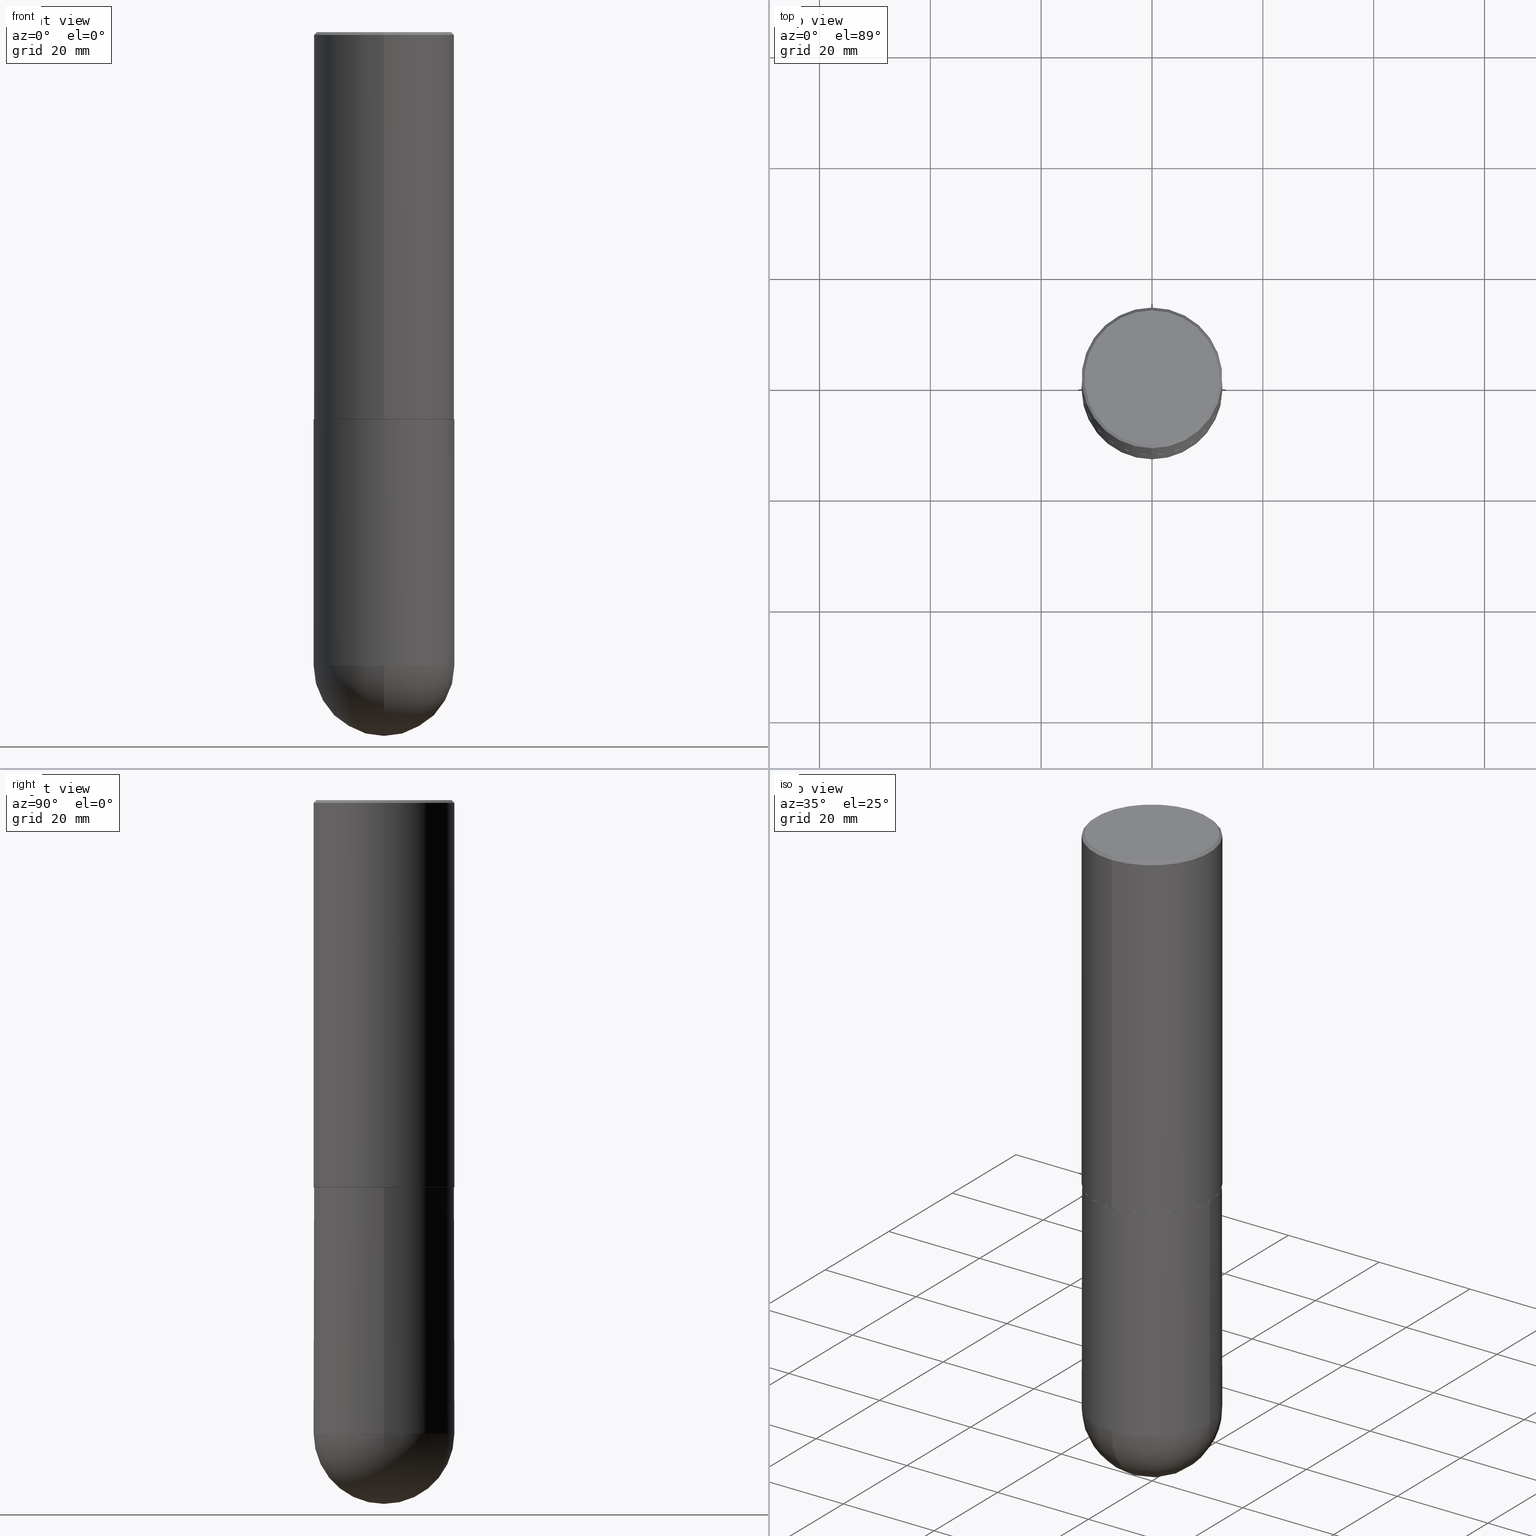
[diagram: canonical four-view strip — front | top / right | iso, engineering-drawing reading convention]
A machine part, canonical four-view strip (front | top / right | iso — engineering-drawing reading convention). The complete STEP part file that produces these views, byte-faithful:
ISO-10303-21;
HEADER;
FILE_DESCRIPTION (( 'STEP AP203' ),
    '1' );
FILE_NAME ('31849.STEP',
    '2024-02-21T17:04:59',
    ( '' ),
    ( '' ),
    'SwSTEP 2.0',
    'SolidWorks 2023',
    '' );
FILE_SCHEMA (( 'CONFIG_CONTROL_DESIGN' ));
ENDSEC;

DATA;
#1 = DIRECTION ( 'NONE',  ( 6.982962677686266711E-15, 1.000000000000000000, 0.000000000000000000 ) ) ;
#2 = ORIENTED_EDGE ( 'NONE', *, *, #10, .F. ) ;
#3 = ORIENTED_EDGE ( 'NONE', *, *, #215, .F. ) ;
#4 = PERSON_AND_ORGANIZATION ( #166, #76 ) ;
#5 = AXIS2_PLACEMENT_3D ( 'NONE', #356, #359, #176 ) ;
#6 = AXIS2_PLACEMENT_3D ( 'NONE', #235, #394, #399 ) ;
#7 = VERTEX_POINT ( 'NONE', #305 ) ;
#8 = COORDINATED_UNIVERSAL_TIME_OFFSET ( 5, 0, .BEHIND. ) ;
#9 = LINE ( 'NONE', #256, #282 ) ;
#10 = EDGE_CURVE ( 'NONE', #255, #55, #181, .T. ) ;
#11 = PERSON_AND_ORGANIZATION_ROLE ( 'design_owner' ) ;
#12 = VERTEX_POINT ( 'NONE', #391 ) ;
#13 = AXIS2_PLACEMENT_3D ( 'NONE', #110, #72, #365 ) ;
#14 = ADVANCED_FACE ( 'NONE', ( #49 ), #28, .T. ) ;
#15 = FACE_OUTER_BOUND ( 'NONE', #203, .T. ) ;
#16 = LINE ( 'NONE', #51, #408 ) ;
#17 = DIRECTION ( 'NONE',  ( 6.982962677686265922E-15, 1.000000000000000000, -3.492399597108675869E-15 ) ) ;
#18 = AXIS2_PLACEMENT_3D ( 'NONE', #169, #200, #358 ) ;
#19 = DIRECTION ( 'NONE',  ( -2.444827589865469410E-29, 3.492399597108675474E-15, 1.000000000000000000 ) ) ;
#20 = FACE_OUTER_BOUND ( 'NONE', #382, .T. ) ;
#21 = MANIFOLD_SOLID_BREP ( 'Body-Move/Copy2[2]', #95 ) ;
#22 = APPROVAL ( #321, 'UNSPECIFIED' ) ;
#23 = DIRECTION ( 'NONE',  ( -6.982962677686265922E-15, -1.000000000000000000, 3.491643216902136802E-15 ) ) ;
#24 = CONICAL_SURFACE ( 'NONE', #75, 0.4999999999999999445, 0.7853981633974469467 ) ;
#25 = LOCAL_TIME ( 12, 4, 59.00000000000000000, #343 ) ;
#26 = DATE_AND_TIME ( #410, #141 ) ;
#27 = ORIENTED_EDGE ( 'NONE', *, *, #162, .T. ) ;
#28 = CONICAL_SURFACE ( 'NONE', #149, 0.4989999999999999991, 0.7853981633974482790 ) ;
#29 = ORIENTED_EDGE ( 'NONE', *, *, #137, .F. ) ;
#30 = PERSON_AND_ORGANIZATION ( #166, #76 ) ;
#31 = DIRECTION ( 'NONE',  ( -1.000000000000000000, 6.982962677686265922E-15, -4.883557194083113462E-29 ) ) ;
#32 = ORIENTED_EDGE ( 'NONE', *, *, #64, .T. ) ;
#33 = PERSON_AND_ORGANIZATION ( #166, #76 ) ;
#34 = CARTESIAN_POINT ( 'NONE',  ( 1.067348984991922956E-28, -1.618584839293420562E-14, -4.500000000000000000 ) ) ;
#35 = ORIENTED_EDGE ( 'NONE', *, *, #227, .T. ) ;
#36 = CARTESIAN_POINT ( 'NONE',  ( 0.5000000000000000000, -3.491481338843133355E-15, 2.438088387897967896E-29 ) ) ;
#37 = AXIS2_PLACEMENT_3D ( 'NONE', #188, #396, #82 ) ;
#38 = APPROVAL_PERSON_ORGANIZATION ( #33, #113, #70 ) ;
#39 = ORIENTED_EDGE ( 'NONE', *, *, #374, .F. ) ;
#40 = DIRECTION ( 'NONE',  ( 5.024295867788060812E-15, 0.7071067811865499042, 0.7071067811865450192 ) ) ;
#41 = DIRECTION ( 'NONE',  ( 1.000000000000000000, -6.982962677686265922E-15, 4.883557194083112340E-29 ) ) ;
#42 = ORIENTED_EDGE ( 'NONE', *, *, #153, .T. ) ;
#43 = SPHERICAL_SURFACE ( 'NONE', #108, 0.5000000000000002220 ) ;
#44 = LOCAL_TIME ( 12, 4, 59.00000000000000000, #289 ) ;
#45 = CARTESIAN_POINT ( 'NONE',  ( -8.568113143938439245E-45, 1.223942130558119662E-30, 3.504587881556881194E-16 ) ) ;
#46 = CARTESIAN_POINT ( 'NONE',  ( 3.552713678800535639E-15, 0.4999999999999907296, -2.749000000000001886 ) ) ;
#47 = DIRECTION ( 'NONE',  ( -2.444827589865469410E-29, 3.492399597108675869E-15, 1.000000000000000000 ) ) ;
#48 = DIRECTION ( 'NONE',  ( -6.982962677686265922E-15, -1.000000000000000000, 3.278217592397113496E-15 ) ) ;
#49 = FACE_OUTER_BOUND ( 'NONE', #65, .T. ) ;
#50 = CIRCLE ( 'NONE', #401, 0.4989999999999999991 ) ;
#51 = CARTESIAN_POINT ( 'NONE',  ( -3.430248998885764598E-15, -0.5000000000000000000, -0.01999999999999835937 ) ) ;
#52 = DIRECTION ( 'NONE',  ( 6.982962677686265922E-15, 1.000000000000000000, -3.491643216902136802E-15 ) ) ;
#53 = AXIS2_PLACEMENT_3D ( 'NONE', #271, #333, #187 ) ;
#54 = DESIGN_CONTEXT ( 'detailed design', #403, 'design' ) ;
#55 = VERTEX_POINT ( 'NONE', #360 ) ;
#56 = ORIENTED_EDGE ( 'NONE', *, *, #153, .F. ) ;
#57 = COORDINATED_UNIVERSAL_TIME_OFFSET ( 5, 0, .BEHIND. ) ;
#58 = ADVANCED_FACE ( 'NONE', ( #85 ), #214, .F. ) ;
#59 = ADVANCED_FACE ( 'NONE', ( #310 ), #213, .F. ) ;
#60 = VERTEX_POINT ( 'NONE', #366 ) ;
#61 = AXIS2_PLACEMENT_3D ( 'NONE', #290, #329, #262 ) ;
#62 = EDGE_LOOP ( 'NONE', ( #222, #39 ) ) ;
#63 = DIRECTION ( 'NONE',  ( -2.444827589865469410E-29, 3.492399597108675869E-15, 1.000000000000000000 ) ) ;
#64 = EDGE_CURVE ( 'NONE', #88, #126, #345, .T. ) ;
#65 = EDGE_LOOP ( 'NONE', ( #326, #406, #130, #324 ) ) ;
#66 = DIRECTION ( 'NONE',  ( 1.000000000000000000, -6.982962677686262766E-15, 0.000000000000000000 ) ) ;
#67 = CC_DESIGN_PERSON_AND_ORGANIZATION_ASSIGNMENT ( #124, #160, ( #274 ) ) ;
#68 = VERTEX_POINT ( 'NONE', #74 ) ;
#69 = LOCAL_TIME ( 12, 4, 59.00000000000000000, #57 ) ;
#70 = APPROVAL_ROLE ( '' ) ;
#71 = LINE ( 'NONE', #225, #185 ) ;
#72 = DIRECTION ( 'NONE',  ( -2.445468806185136597E-29, 3.491481338843145583E-15, 1.000000000000000000 ) ) ;
#73 = CYLINDRICAL_SURFACE ( 'NONE', #13, 0.5000000000000000000 ) ;
#74 = CARTESIAN_POINT ( 'NONE',  ( 1.191760341024128201E-28, -1.790097289237709482E-14, -5.000000000000000000 ) ) ;
#75 = AXIS2_PLACEMENT_3D ( 'NONE', #397, #341, #52 ) ;
#76 = ORGANIZATION ( 'UNSPECIFIED', 'UNSPECIFIED', '' ) ;
#77 = DIRECTION ( 'NONE',  ( -2.445468806185136597E-29, 3.491481338843145583E-15, 1.000000000000000000 ) ) ;
#78 = DIRECTION ( 'NONE',  ( -2.444827589865469410E-29, 3.492399597108675474E-15, 1.000000000000000000 ) ) ;
#79 = EDGE_CURVE ( 'NONE', #99, #55, #173, .T. ) ;
#80 = DIRECTION ( 'NONE',  ( -6.982962677686265922E-15, -1.000000000000000000, 3.492399597108675869E-15 ) ) ;
#81 = EDGE_LOOP ( 'NONE', ( #228, #32, #134, #42, #84 ) ) ;
#82 = DIRECTION ( 'NONE',  ( 6.982962677686265922E-15, 1.000000000000000000, -3.491643216902136802E-15 ) ) ;
#83 =( NAMED_UNIT ( * ) PLANE_ANGLE_UNIT ( ) SI_UNIT ( $, .RADIAN. ) );
#84 = ORIENTED_EDGE ( 'NONE', *, *, #350, .F. ) ;
#85 = FACE_OUTER_BOUND ( 'NONE', #251, .T. ) ;
#86 = CIRCLE ( 'NONE', #190, 0.5000000000000000000 ) ;
#87 = EDGE_CURVE ( 'NONE', #255, #287, #377, .T. ) ;
#88 = VERTEX_POINT ( 'NONE', #234 ) ;
#89 = SECURITY_CLASSIFICATION ( '', '', #288 ) ;
#90 = CARTESIAN_POINT ( 'NONE',  ( 0.000000000000000000, 0.000000000000000000, 0.000000000000000000 ) ) ;
#91 = APPLICATION_PROTOCOL_DEFINITION ( 'international standard', 'config_control_design', 1994, #376 ) ;
#92 = APPROVAL_DATE_TIME ( #246, #22 ) ;
#93 = EDGE_LOOP ( 'NONE', ( #199, #35, #346, #2 ) ) ;
#94 = ORIENTED_EDGE ( 'NONE', *, *, #221, .F. ) ;
#95 = CLOSED_SHELL ( 'NONE', ( #14, #158, #97, #109, #143, #293, #309, #59 ) ) ;
#96 = VECTOR ( 'NONE', #184, 39.37007874015748854 ) ;
#97 = ADVANCED_FACE ( 'NONE', ( #363 ), #311, .T. ) ;
#98 = EDGE_LOOP ( 'NONE', ( #351, #277, #29, #56, #192 ) ) ;
#99 = VERTEX_POINT ( 'NONE', #338 ) ;
#100 = CARTESIAN_POINT ( 'NONE',  ( -0.5000000000000000000, -9.103906174505900082E-15, -2.750000000000000000 ) ) ;
#101 = DIRECTION ( 'NONE',  ( -2.445468806185136877E-29, 3.491481338843145188E-15, 1.000000000000000000 ) ) ;
#102 = CIRCLE ( 'NONE', #5, 0.5000000000000002220 ) ;
#103 = AXIS2_PLACEMENT_3D ( 'NONE', #45, #19, #151 ) ;
#104 = CARTESIAN_POINT ( 'NONE',  ( 3.552713678800501718E-15, 0.5000000000000001110, -1.746199798554338132E-15 ) ) ;
#105 = DIRECTION ( 'NONE',  ( 6.982962677686265922E-15, 1.000000000000000000, -3.278217592397114284E-15 ) ) ;
#106 = DIRECTION ( 'NONE',  ( -2.444827589865468849E-29, 3.492399597108675869E-15, 1.000000000000000000 ) ) ;
#107 = DIRECTION ( 'NONE',  ( -6.982962677686265922E-15, -1.000000000000000000, 3.278217592397113496E-15 ) ) ;
#108 = AXIS2_PLACEMENT_3D ( 'NONE', #144, #367, #105 ) ;
#109 = ADVANCED_FACE ( 'NONE', ( #20 ), #24, .T. ) ;
#110 = CARTESIAN_POINT ( 'NONE',  ( 0.000000000000000000, 0.000000000000000000, 0.000000000000000000 ) ) ;
#111 = VERTEX_POINT ( 'NONE', #272 ) ;
#112 = CARTESIAN_POINT ( 'NONE',  ( 6.720831044540175662E-29, -9.600606492451749186E-15, -2.749000000000000110 ) ) ;
#113 = APPROVAL ( #172, 'UNSPECIFIED' ) ;
#114 =( CONVERSION_BASED_UNIT ( 'INCH', #180 ) LENGTH_UNIT ( ) NAMED_UNIT ( #279 ) );
#115 = EDGE_LOOP ( 'NONE', ( #375, #368, #411, #250 ) ) ;
#116 = EDGE_CURVE ( 'NONE', #126, #7, #121, .T. ) ;
#117 = CARTESIAN_POINT ( 'NONE',  ( 6.720831044540175662E-29, -9.600606492451749186E-15, -2.749000000000000110 ) ) ;
#118 = CC_DESIGN_APPROVAL ( #22, ( #89 ) ) ;
#119 = PERSON_AND_ORGANIZATION ( #166, #76 ) ;
#120 = VERTEX_POINT ( 'NONE', #249 ) ;
#121 = CIRCLE ( 'NONE', #204, 0.5000000000000000000 ) ;
#122 = APPROVAL_PERSON_ORGANIZATION ( #258, #257, #278 ) ;
#123 = ORIENTED_EDGE ( 'NONE', *, *, #215, .T. ) ;
#124 = PERSON_AND_ORGANIZATION ( #166, #76 ) ;
#125 = DIRECTION ( 'NONE',  ( 1.000000000000000000, -6.982962677686262766E-15, 0.000000000000000000 ) ) ;
#126 = VERTEX_POINT ( 'NONE', #129 ) ;
#127 = CALENDAR_DATE ( 2024, 21, 2 ) ;
#128 = DATE_AND_TIME ( #412, #44 ) ;
#129 = CARTESIAN_POINT ( 'NONE',  ( -3.552713678800393250E-15, -0.5000000000000160982, -4.499999999999998224 ) ) ;
#130 = ORIENTED_EDGE ( 'NONE', *, *, #87, .F. ) ;
#131 = VECTOR ( 'NONE', #294, 39.37007874015748143 ) ;
#132 = CC_DESIGN_SECURITY_CLASSIFICATION ( #89, ( #274 ) ) ;
#133 = DIRECTION ( 'NONE',  ( -6.982962677686265922E-15, -1.000000000000000000, 3.492399597108675474E-15 ) ) ;
#134 = ORIENTED_EDGE ( 'NONE', *, *, #116, .T. ) ;
#135 = DIRECTION ( 'NONE',  ( -2.444827589865469410E-29, 3.492399597108675474E-15, 1.000000000000000000 ) ) ;
#136 = DIRECTION ( 'NONE',  ( -6.982962677686265922E-15, -1.000000000000000000, 3.492399597108675474E-15 ) ) ;
#137 = EDGE_CURVE ( 'NONE', #12, #167, #344, .T. ) ;
#138 = ADVANCED_FACE ( 'NONE', ( #259 ), #381, .T. ) ;
#139 = LINE ( 'NONE', #104, #212 ) ;
#140 = CIRCLE ( 'NONE', #295, 0.5000000000000000000 ) ;
#141 = LOCAL_TIME ( 12, 4, 59.00000000000000000, #286 ) ;
#142 = FACE_OUTER_BOUND ( 'NONE', #115, .T. ) ;
#143 = ADVANCED_FACE ( 'NONE', ( #205 ), #253, .T. ) ;
#144 = CARTESIAN_POINT ( 'NONE',  ( 1.067348984991922956E-28, -1.618584839293420562E-14, -4.500000000000000000 ) ) ;
#145 = EDGE_CURVE ( 'NONE', #371, #287, #71, .T. ) ;
#146 = DIRECTION ( 'NONE',  ( -2.444827589865469410E-29, 3.492399597108675474E-15, 1.000000000000000000 ) ) ;
#147 = CARTESIAN_POINT ( 'NONE',  ( 6.723275872130042138E-29, -9.604098892048859724E-15, -2.750000000000000444 ) ) ;
#148 = CC_DESIGN_DATE_AND_TIME_ASSIGNMENT ( #128, #238, ( #193 ) ) ;
#149 = AXIS2_PLACEMENT_3D ( 'NONE', #210, #78, #242 ) ;
#150 = DIRECTION ( 'NONE',  ( 2.444827589865468849E-29, -3.492399597108675869E-15, -1.000000000000000000 ) ) ;
#151 = DIRECTION ( 'NONE',  ( -6.982962677686265922E-15, -1.000000000000000000, 3.492399597108675474E-15 ) ) ;
#152 = DIRECTION ( 'NONE',  ( 1.000000000000000000, -6.982962677686262766E-15, 0.000000000000000000 ) ) ;
#153 = EDGE_CURVE ( 'NONE', #7, #12, #354, .T. ) ;
#154 = VECTOR ( 'NONE', #47, 39.37007874015748143 ) ;
#155 = DATE_AND_TIME ( #347, #25 ) ;
#156 = MECHANICAL_CONTEXT ( 'NONE', #376, 'mechanical' ) ;
#157 = ORIENTED_EDGE ( 'NONE', *, *, #116, .F. ) ;
#158 = ADVANCED_FACE ( 'NONE', ( #229 ), #165, .T. ) ;
#159 = CC_DESIGN_DATE_AND_TIME_ASSIGNMENT ( #155, #275, ( #89 ) ) ;
#160 = PERSON_AND_ORGANIZATION_ROLE ( 'creator' ) ;
#161 = AXIS2_PLACEMENT_3D ( 'NONE', #112, #209, #107 ) ;
#162 = EDGE_CURVE ( 'NONE', #111, #223, #361, .T. ) ;
#163 = ORIENTED_EDGE ( 'NONE', *, *, #162, .F. ) ;
#164 = SHAPE_DEFINITION_REPRESENTATION ( #276, #317 ) ;
#165 = CYLINDRICAL_SURFACE ( 'NONE', #61, 0.5000000000000001110 ) ;
#166 = PERSON ( 'UNSPECIFIED', 'UNSPECIFIED', 'UNSPECIFIED', ('UNSPECIFIED'), ('UNSPECIFIED'), ('UNSPECIFIED') ) ;
#167 = VERTEX_POINT ( 'NONE', #100 ) ;
#168 = PRODUCT_RELATED_PRODUCT_CATEGORY ( 'detail', '', ( #349 ) ) ;
#169 = CARTESIAN_POINT ( 'NONE',  ( 6.725039217009124520E-29, -9.601573681818649859E-15, -2.750000000000000000 ) ) ;
#170 = ORIENTED_EDGE ( 'NONE', *, *, #315, .F. ) ;
#171 = VECTOR ( 'NONE', #101, 39.37007874015748143 ) ;
#172 = APPROVAL_STATUS ( 'not_yet_approved' ) ;
#173 = CIRCLE ( 'NONE', #302, 0.4999999999999999445 ) ;
#174 = DIRECTION ( 'NONE',  ( -2.444827589865469410E-29, 3.492399597108675474E-15, 1.000000000000000000 ) ) ;
#175 = EDGE_LOOP ( 'NONE', ( #163, #348, #226, #224 ) ) ;
#176 = DIRECTION ( 'NONE',  ( -7.105427357601001859E-15, -1.000000000000000000, 0.000000000000000000 ) ) ;
#177 = CARTESIAN_POINT ( 'NONE',  ( 3.421651712066268479E-15, 0.4799999999999995381, -1.325893018456474505E-15 ) ) ;
#178 = CARTESIAN_POINT ( 'NONE',  ( -3.484498376165379105E-15, -0.4990000000000096025, -2.749999999999998668 ) ) ;
#179 = EDGE_CURVE ( 'NONE', #120, #88, #86, .T. ) ;
#180 = LENGTH_MEASURE_WITH_UNIT ( LENGTH_MEASURE( 0.02539999999999999897 ), #392 );
#181 = LINE ( 'NONE', #270, #154 ) ;
#182 = FACE_OUTER_BOUND ( 'NONE', #81, .T. ) ;
#183 = DIRECTION ( 'NONE',  ( -1.000000000000000000, 6.982962677686265922E-15, -4.876176775795935793E-29 ) ) ;
#184 = DIRECTION ( 'NONE',  ( -4.937700262164547253E-15, -0.7071067811865450192, 0.7071067811865499042 ) ) ;
#185 = VECTOR ( 'NONE', #40, 39.37007874015748854 ) ;
#186 = CARTESIAN_POINT ( 'NONE',  ( 4.889655179730964743E-31, -6.984799194217388025E-17, -0.02000000000000010797 ) ) ;
#187 = DIRECTION ( 'NONE',  ( 1.000000000000000000, -6.982962677686266711E-15, 4.876176775795935793E-29 ) ) ;
#188 = CARTESIAN_POINT ( 'NONE',  ( 4.889655179730964743E-31, -6.984799194217388025E-17, -0.02000000000000010797 ) ) ;
#189 =( NAMED_UNIT ( * ) SI_UNIT ( $, .STERADIAN. ) SOLID_ANGLE_UNIT ( ) );
#190 = AXIS2_PLACEMENT_3D ( 'NONE', #352, #388, #66 ) ;
#191 = EDGE_CURVE ( 'NONE', #60, #371, #50, .T. ) ;
#192 = ORIENTED_EDGE ( 'NONE', *, *, #254, .T. ) ;
#193 = PRODUCT_DEFINITION ( 'UNKNOWN', '', #274, #54 ) ;
#194 = DIRECTION ( 'NONE',  ( -2.445468806185136597E-29, 3.491481338843145583E-15, 1.000000000000000000 ) ) ;
#195 = ORIENTED_EDGE ( 'NONE', *, *, #342, .T. ) ;
#196 = EDGE_CURVE ( 'NONE', #223, #99, #9, .T. ) ;
#197 = CIRCLE ( 'NONE', #241, 0.4999999999999999445 ) ;
#198 = LINE ( 'NONE', #385, #171 ) ;
#199 = ORIENTED_EDGE ( 'NONE', *, *, #87, .T. ) ;
#200 = DIRECTION ( 'NONE',  ( -2.445468806185136597E-29, 3.491481338843145583E-15, 1.000000000000000000 ) ) ;
#201 = EDGE_LOOP ( 'NONE', ( #395, #195, #389, #379 ) ) ;
#202 = CARTESIAN_POINT ( 'NONE',  ( 6.723275872130042138E-29, -9.604098892048859724E-15, -2.750000000000000444 ) ) ;
#203 = EDGE_LOOP ( 'NONE', ( #94, #123, #239, #322 ) ) ;
#204 = AXIS2_PLACEMENT_3D ( 'NONE', #400, #194, #125 ) ;
#205 = FACE_OUTER_BOUND ( 'NONE', #201, .T. ) ;
#206 = LINE ( 'NONE', #178, #96 ) ;
#207 = CARTESIAN_POINT ( 'NONE',  ( 6.725039217009124520E-29, -9.601573681818649859E-15, -2.750000000000000000 ) ) ;
#208 = CC_DESIGN_APPROVAL ( #257, ( #274 ) ) ;
#209 = DIRECTION ( 'NONE',  ( -2.444827589865469410E-29, 3.492399597108675474E-15, 1.000000000000000000 ) ) ;
#210 = CARTESIAN_POINT ( 'NONE',  ( 6.723275872130042138E-29, -9.604098892048859724E-15, -2.750000000000000444 ) ) ;
#211 = CARTESIAN_POINT ( 'NONE',  ( 1.100460962783311244E-28, -1.571166602479415374E-14, -4.499999999999999112 ) ) ;
#212 = VECTOR ( 'NONE', #63, 39.37007874015748143 ) ;
#213 = PLANE ( 'NONE',  #216 ) ;
#214 = PLANE ( 'NONE',  #260 ) ;
#215 = EDGE_CURVE ( 'NONE', #68, #126, #102, .T. ) ;
#216 = AXIS2_PLACEMENT_3D ( 'NONE', #237, #150, #17 ) ;
#217 = EDGE_CURVE ( 'NONE', #88, #167, #198, .T. ) ;
#218 = CIRCLE ( 'NONE', #303, 0.4989999999999999991 ) ;
#219 = AXIS2_PLACEMENT_3D ( 'NONE', #117, #263, #48 ) ;
#220 = PERSON_AND_ORGANIZATION_ROLE ( 'classification_officer' ) ;
#221 = EDGE_CURVE ( 'NONE', #68, #120, #339, .T. ) ;
#222 = ORIENTED_EDGE ( 'NONE', *, *, #191, .F. ) ;
#223 = VERTEX_POINT ( 'NONE', #177 ) ;
#224 = ORIENTED_EDGE ( 'NONE', *, *, #196, .F. ) ;
#225 = CARTESIAN_POINT ( 'NONE',  ( 3.545608251442966974E-15, 0.4989999999999903402, -2.750000000000002220 ) ) ;
#226 = ORIENTED_EDGE ( 'NONE', *, *, #273, .T. ) ;
#227 = EDGE_CURVE ( 'NONE', #287, #99, #139, .T. ) ;
#228 = ORIENTED_EDGE ( 'NONE', *, *, #217, .F. ) ;
#229 = FACE_OUTER_BOUND ( 'NONE', #93, .T. ) ;
#230 = AXIS2_PLACEMENT_3D ( 'NONE', #327, #299, #133 ) ;
#231 = CARTESIAN_POINT ( 'NONE',  ( 1.067348984991922956E-28, -1.618584839293420562E-14, -4.500000000000000000 ) ) ;
#232 = DIRECTION ( 'NONE',  ( -2.444827589865469410E-29, 3.492399597108675474E-15, 1.000000000000000000 ) ) ;
#233 = DIRECTION ( 'NONE',  ( 1.000000000000000000, -6.982962677686266711E-15, 0.000000000000000000 ) ) ;
#234 = CARTESIAN_POINT ( 'NONE',  ( -0.5000000000000000000, -9.103906174505904815E-15, -4.499999999999999112 ) ) ;
#235 = CARTESIAN_POINT ( 'NONE',  ( 6.723275872130042138E-29, -9.604098892048859724E-15, -2.750000000000000444 ) ) ;
#236 = ORIENTED_EDGE ( 'NONE', *, *, #254, .F. ) ;
#237 = CARTESIAN_POINT ( 'NONE',  ( 3.351822085289404392E-15, 0.4799999999999995381, -1.501122412534318392E-15 ) ) ;
#238 = DATE_TIME_ROLE ( 'creation_date' ) ;
#239 = ORIENTED_EDGE ( 'NONE', *, *, #64, .F. ) ;
#240 = DIRECTION ( 'NONE',  ( -6.982962677686265922E-15, -1.000000000000000000, 3.284787166730577015E-15 ) ) ;
#241 = AXIS2_PLACEMENT_3D ( 'NONE', #340, #330, #264 ) ;
#242 = DIRECTION ( 'NONE',  ( -6.982962677686265922E-15, -1.000000000000000000, 3.284787166730577015E-15 ) ) ;
#243 = APPROVAL_DATE_TIME ( #26, #257 ) ;
#244 = CONICAL_SURFACE ( 'NONE', #6, 0.4989999999999999991, 0.7853981633974482790 ) ;
#245 = DIRECTION ( 'NONE',  ( 1.000000000000000000, 0.000000000000000000, 0.000000000000000000 ) ) ;
#246 = DATE_AND_TIME ( #127, #69 ) ;
#247 = ADVANCED_FACE ( 'NONE', ( #362 ), #266, .T. ) ;
#248 = UNCERTAINTY_MEASURE_WITH_UNIT (LENGTH_MEASURE( 1.000000000000000082E-05 ), #114, 'distance_accuracy_value', 'NONE');
#249 = CARTESIAN_POINT ( 'NONE',  ( 3.491481338843242218E-15, 0.4999999999999841238, -4.500000000000000888 ) ) ;
#250 = ORIENTED_EDGE ( 'NONE', *, *, #342, .F. ) ;
#251 = EDGE_LOOP ( 'NONE', ( #355, #404 ) ) ;
#252 = LOCAL_TIME ( 12, 4, 59.00000000000000000, #8 ) ;
#253 = CYLINDRICAL_SURFACE ( 'NONE', #357, 0.5000000000000001110 ) ;
#254 = EDGE_CURVE ( 'NONE', #7, #120, #140, .T. ) ;
#255 = VERTEX_POINT ( 'NONE', #334 ) ;
#256 = CARTESIAN_POINT ( 'NONE',  ( 3.491481338843132961E-15, 0.4999999999999998335, -0.02000000000000185310 ) ) ;
#257 = APPROVAL ( #328, 'UNSPECIFIED' ) ;
#258 = PERSON_AND_ORGANIZATION ( #166, #76 ) ;
#259 = FACE_OUTER_BOUND ( 'NONE', #285, .T. ) ;
#260 = AXIS2_PLACEMENT_3D ( 'NONE', #307, #335, #183 ) ;
#261 = ADVANCED_FACE ( 'NONE', ( #15 ), #43, .T. ) ;
#262 = DIRECTION ( 'NONE',  ( -6.982962677686265922E-15, -1.000000000000000000, 3.492399597108675474E-15 ) ) ;
#263 = DIRECTION ( 'NONE',  ( -2.444827589865469410E-29, 3.492399597108675474E-15, 1.000000000000000000 ) ) ;
#264 = DIRECTION ( 'NONE',  ( -6.982962677686265922E-15, -1.000000000000000000, 3.491643216902136802E-15 ) ) ;
#265 = AXIS2_PLACEMENT_3D ( 'NONE', #34, #31, #325 ) ;
#266 = CYLINDRICAL_SURFACE ( 'NONE', #53, 0.5000000000000000000 ) ;
#267 = CC_DESIGN_APPROVAL ( #113, ( #193 ) ) ;
#268 = DIRECTION ( 'NONE',  ( -2.445468806185136597E-29, 3.491481338843145583E-15, 1.000000000000000000 ) ) ;
#269 = ADVANCED_FACE ( 'NONE', ( #182 ), #73, .T. ) ;
#270 = CARTESIAN_POINT ( 'NONE',  ( -3.491481338843133750E-15, -0.5000000000000001110, 1.746199798554338132E-15 ) ) ;
#271 = CARTESIAN_POINT ( 'NONE',  ( 0.000000000000000000, 0.000000000000000000, 0.000000000000000000 ) ) ;
#272 = CARTESIAN_POINT ( 'NONE',  ( -3.361644018908048083E-15, -0.4799999999999995381, 2.026810594767851040E-15 ) ) ;
#273 = EDGE_CURVE ( 'NONE', #55, #99, #197, .T. ) ;
#274 = PRODUCT_DEFINITION_FORMATION_WITH_SPECIFIED_SOURCE ( 'ANY', '', #349, .NOT_KNOWN. ) ;
#275 = DATE_TIME_ROLE ( 'classification_date' ) ;
#276 = PRODUCT_DEFINITION_SHAPE ( 'NONE', 'NONE',  #193 ) ;
#277 = ORIENTED_EDGE ( 'NONE', *, *, #217, .T. ) ;
#278 = APPROVAL_ROLE ( '' ) ;
#279 = DIMENSIONAL_EXPONENTS ( 1.000000000000000000, 0.000000000000000000, 0.000000000000000000, 0.000000000000000000, 0.000000000000000000, 0.000000000000000000, 0.000000000000000000 ) ;
#280 = PERSON_AND_ORGANIZATION_ROLE ( 'design_supplier' ) ;
#281 = DIRECTION ( 'NONE',  ( 0.000000000000000000, 0.000000000000000000, 1.000000000000000000 ) ) ;
#282 = VECTOR ( 'NONE', #383, 39.37007874015748143 ) ;
#283 = ORIENTED_EDGE ( 'NONE', *, *, #409, .F. ) ;
#284 = CIRCLE ( 'NONE', #402, 0.5000000000000000000 ) ;
#285 = EDGE_LOOP ( 'NONE', ( #3, #369, #236, #157 ) ) ;
#286 = COORDINATED_UNIVERSAL_TIME_OFFSET ( 5, 0, .BEHIND. ) ;
#287 = VERTEX_POINT ( 'NONE', #46 ) ;
#288 = SECURITY_CLASSIFICATION_LEVEL ( 'unclassified' ) ;
#289 = COORDINATED_UNIVERSAL_TIME_OFFSET ( 5, 0, .BEHIND. ) ;
#290 = CARTESIAN_POINT ( 'NONE',  ( 0.000000000000000000, 0.000000000000000000, 0.000000000000000000 ) ) ;
#291 = EDGE_LOOP ( 'NONE', ( #353, #27 ) ) ;
#292 = APPROVAL_DATE_TIME ( #300, #113 ) ;
#293 = ADVANCED_FACE ( 'NONE', ( #142 ), #244, .T. ) ;
#294 = DIRECTION ( 'NONE',  ( -2.445468806185136877E-29, 3.491481338843145188E-15, 1.000000000000000000 ) ) ;
#295 = AXIS2_PLACEMENT_3D ( 'NONE', #211, #390, #304 ) ;
#296 = ORIENTED_EDGE ( 'NONE', *, *, #196, .T. ) ;
#297 = CC_DESIGN_PERSON_AND_ORGANIZATION_ASSIGNMENT ( #30, #11, ( #349 ) ) ;
#298 = DIRECTION ( 'NONE',  ( -6.982962677686265922E-15, -1.000000000000000000, 3.284787166730577015E-15 ) ) ;
#299 = DIRECTION ( 'NONE',  ( -2.444827589865469410E-29, 3.492399597108675474E-15, 1.000000000000000000 ) ) ;
#300 = DATE_AND_TIME ( #384, #252 ) ;
#301 = CARTESIAN_POINT ( 'NONE',  ( 0.000000000000000000, 0.000000000000000000, 0.000000000000000000 ) ) ;
#302 = AXIS2_PLACEMENT_3D ( 'NONE', #186, #146, #23 ) ;
#303 = AXIS2_PLACEMENT_3D ( 'NONE', #147, #232, #240 ) ;
#304 = DIRECTION ( 'NONE',  ( 1.000000000000000000, -6.982962677686262766E-15, 0.000000000000000000 ) ) ;
#305 = CARTESIAN_POINT ( 'NONE',  ( 0.5000000000000000000, -1.614810119214953752E-14, -4.499999999999999112 ) ) ;
#306 = PLANE ( 'NONE',  #393 ) ;
#307 = CARTESIAN_POINT ( 'NONE',  ( 3.491481338843200408E-15, 0.4999999999999903411, -2.750000000000001332 ) ) ;
#308 = CARTESIAN_POINT ( 'NONE',  ( 3.549160965121767873E-15, 0.4989999999999903402, -2.750000000000002220 ) ) ;
#309 = ADVANCED_FACE ( 'NONE', ( #314 ), #306, .F. ) ;
#310 = FACE_OUTER_BOUND ( 'NONE', #291, .T. ) ;
#311 = CONICAL_SURFACE ( 'NONE', #37, 0.4999999999999999445, 0.7853981633974469467 ) ;
#312 = CARTESIAN_POINT ( 'NONE',  ( 6.723275872130039896E-29, -9.604098892048858146E-15, -2.750000000000000000 ) ) ;
#313 = CARTESIAN_POINT ( 'NONE',  ( 1.100460962783311244E-28, -1.571166602479415374E-14, -4.499999999999999112 ) ) ;
#314 = FACE_OUTER_BOUND ( 'NONE', #62, .T. ) ;
#315 = EDGE_CURVE ( 'NONE', #111, #55, #16, .T. ) ;
#316 = MANIFOLD_SOLID_BREP ( 'Body-Move/Copy2[1]', #331 ) ;
#317 = ADVANCED_BREP_SHAPE_REPRESENTATION ( '31849', ( #316, #21, #378 ), #387 ) ;
#318 = APPROVAL_PERSON_ORGANIZATION ( #119, #22, #407 ) ;
#319 = ORIENTED_EDGE ( 'NONE', *, *, #79, .T. ) ;
#320 = CIRCLE ( 'NONE', #219, 0.5000000000000003331 ) ;
#321 = APPROVAL_STATUS ( 'not_yet_approved' ) ;
#322 = ORIENTED_EDGE ( 'NONE', *, *, #179, .F. ) ;
#323 = PERSON_AND_ORGANIZATION ( #166, #76 ) ;
#324 = ORIENTED_EDGE ( 'NONE', *, *, #398, .F. ) ;
#325 = DIRECTION ( 'NONE',  ( 6.982962677686265922E-15, 1.000000000000000000, -3.278217592397114284E-15 ) ) ;
#326 = ORIENTED_EDGE ( 'NONE', *, *, #191, .T. ) ;
#327 = CARTESIAN_POINT ( 'NONE',  ( -8.568113143938439245E-45, 1.223942130558119662E-30, 3.504587881556881194E-16 ) ) ;
#328 = APPROVAL_STATUS ( 'not_yet_approved' ) ;
#329 = DIRECTION ( 'NONE',  ( -2.444827589865469410E-29, 3.492399597108675474E-15, 1.000000000000000000 ) ) ;
#330 = DIRECTION ( 'NONE',  ( -2.444827589865469410E-29, 3.492399597108675474E-15, 1.000000000000000000 ) ) ;
#331 = CLOSED_SHELL ( 'NONE', ( #247, #261, #138, #58, #269 ) ) ;
#332 = CIRCLE ( 'NONE', #103, 0.4799999999999995381 ) ;
#333 = DIRECTION ( 'NONE',  ( -2.445468806185136597E-29, 3.491481338843145583E-15, 1.000000000000000000 ) ) ;
#334 = CARTESIAN_POINT ( 'NONE',  ( -3.491481338843068274E-15, -0.5000000000000099920, -2.748999999999998334 ) ) ;
#335 = DIRECTION ( 'NONE',  ( 2.438088387897960049E-29, -3.491481338843145188E-15, -1.000000000000000000 ) ) ;
#336 = CC_DESIGN_PERSON_AND_ORGANIZATION_ASSIGNMENT ( #372, #280, ( #274 ) ) ;
#337 = DIRECTION ( 'NONE',  ( -4.851104656540957175E-15, -0.7071067811865490160, -0.7071067811865460184 ) ) ;
#338 = CARTESIAN_POINT ( 'NONE',  ( 3.491481338843132961E-15, 0.4999999999999998335, -0.02000000000000185310 ) ) ;
#339 = CIRCLE ( 'NONE', #386, 0.5000000000000002220 ) ;
#340 = CARTESIAN_POINT ( 'NONE',  ( 4.889655179730964743E-31, -6.984799194217388025E-17, -0.02000000000000010797 ) ) ;
#341 = DIRECTION ( 'NONE',  ( 2.444827589865469410E-29, -3.492399597108675474E-15, -1.000000000000000000 ) ) ;
#342 = EDGE_CURVE ( 'NONE', #287, #255, #320, .T. ) ;
#343 = COORDINATED_UNIVERSAL_TIME_OFFSET ( 5, 0, .BEHIND. ) ;
#344 = CIRCLE ( 'NONE', #18, 0.5000000000000000000 ) ;
#345 = CIRCLE ( 'NONE', #370, 0.5000000000000000000 ) ;
#346 = ORIENTED_EDGE ( 'NONE', *, *, #273, .F. ) ;
#347 = CALENDAR_DATE ( 2024, 21, 2 ) ;
#348 = ORIENTED_EDGE ( 'NONE', *, *, #315, .T. ) ;
#349 = PRODUCT ( '31849', '31849', '', ( #156 ) ) ;
#350 = EDGE_CURVE ( 'NONE', #167, #12, #284, .T. ) ;
#351 = ORIENTED_EDGE ( 'NONE', *, *, #179, .T. ) ;
#352 = CARTESIAN_POINT ( 'NONE',  ( 1.100460962783311244E-28, -1.571166602479415374E-14, -4.499999999999999112 ) ) ;
#353 = ORIENTED_EDGE ( 'NONE', *, *, #409, .T. ) ;
#354 = LINE ( 'NONE', #36, #131 ) ;
#355 = ORIENTED_EDGE ( 'NONE', *, *, #137, .T. ) ;
#356 = CARTESIAN_POINT ( 'NONE',  ( 1.067348984991922956E-28, -1.618584839293420562E-14, -4.500000000000000000 ) ) ;
#357 = AXIS2_PLACEMENT_3D ( 'NONE', #301, #135, #136 ) ;
#358 = DIRECTION ( 'NONE',  ( 1.000000000000000000, -6.982962677686266711E-15, 0.000000000000000000 ) ) ;
#359 = DIRECTION ( 'NONE',  ( -1.000000000000000000, 7.105427357601001070E-15, -4.926315508542082329E-29 ) ) ;
#360 = CARTESIAN_POINT ( 'NONE',  ( -3.430248998885764598E-15, -0.5000000000000000000, -0.01999999999999835937 ) ) ;
#361 = CIRCLE ( 'NONE', #230, 0.4799999999999995381 ) ;
#362 = FACE_OUTER_BOUND ( 'NONE', #98, .T. ) ;
#363 = FACE_OUTER_BOUND ( 'NONE', #175, .T. ) ;
#364 = CC_DESIGN_PERSON_AND_ORGANIZATION_ASSIGNMENT ( #4, #373, ( #193 ) ) ;
#365 = DIRECTION ( 'NONE',  ( 1.000000000000000000, -6.982962677686266711E-15, 4.876176775795935793E-29 ) ) ;
#366 = CARTESIAN_POINT ( 'NONE',  ( -3.484498376165379105E-15, -0.4990000000000096025, -2.749999999999998668 ) ) ;
#367 = DIRECTION ( 'NONE',  ( -1.000000000000000000, 6.982962677686265922E-15, -4.883557194083113462E-29 ) ) ;
#368 = ORIENTED_EDGE ( 'NONE', *, *, #374, .T. ) ;
#369 = ORIENTED_EDGE ( 'NONE', *, *, #221, .T. ) ;
#370 = AXIS2_PLACEMENT_3D ( 'NONE', #313, #268, #152 ) ;
#371 = VERTEX_POINT ( 'NONE', #308 ) ;
#372 = PERSON_AND_ORGANIZATION ( #166, #76 ) ;
#373 = PERSON_AND_ORGANIZATION_ROLE ( 'creator' ) ;
#374 = EDGE_CURVE ( 'NONE', #371, #60, #218, .T. ) ;
#375 = ORIENTED_EDGE ( 'NONE', *, *, #145, .F. ) ;
#376 = APPLICATION_CONTEXT ( 'configuration controlled 3d designs of mechanical parts and assemblies' ) ;
#377 = CIRCLE ( 'NONE', #161, 0.5000000000000003331 ) ;
#378 = AXIS2_PLACEMENT_3D ( 'NONE', #90, #281, #245 ) ;
#379 = ORIENTED_EDGE ( 'NONE', *, *, #79, .F. ) ;
#380 = APPLICATION_PROTOCOL_DEFINITION ( 'international standard', 'config_control_design', 1994, #403 ) ;
#381 = SPHERICAL_SURFACE ( 'NONE', #265, 0.5000000000000002220 ) ;
#382 = EDGE_LOOP ( 'NONE', ( #170, #283, #296, #319 ) ) ;
#383 = DIRECTION ( 'NONE',  ( 4.937700262164540942E-15, 0.7071067811865441310, -0.7071067811865509034 ) ) ;
#384 = CALENDAR_DATE ( 2024, 21, 2 ) ;
#385 = CARTESIAN_POINT ( 'NONE',  ( -0.5000000000000000000, 3.552713678800500929E-15, -2.459467545127452891E-29 ) ) ;
#386 = AXIS2_PLACEMENT_3D ( 'NONE', #231, #41, #1 ) ;
#387 =( GEOMETRIC_REPRESENTATION_CONTEXT ( 3 ) GLOBAL_UNCERTAINTY_ASSIGNED_CONTEXT ( ( #248 ) ) GLOBAL_UNIT_ASSIGNED_CONTEXT ( ( #114, #83, #189 ) ) REPRESENTATION_CONTEXT ( 'NONE', 'WORKASPACE' ) );
#388 = DIRECTION ( 'NONE',  ( -2.445468806185136597E-29, 3.491481338843145583E-15, 1.000000000000000000 ) ) ;
#389 = ORIENTED_EDGE ( 'NONE', *, *, #10, .T. ) ;
#390 = DIRECTION ( 'NONE',  ( -2.445468806185136597E-29, 3.491481338843145583E-15, 1.000000000000000000 ) ) ;
#391 = CARTESIAN_POINT ( 'NONE',  ( 0.5000000000000000000, -1.309305502066178321E-14, -2.750000000000000000 ) ) ;
#392 =( LENGTH_UNIT ( ) NAMED_UNIT ( * ) SI_UNIT ( $, .METRE. ) );
#393 = AXIS2_PLACEMENT_3D ( 'NONE', #312, #106, #80 ) ;
#394 = DIRECTION ( 'NONE',  ( -2.444827589865469410E-29, 3.492399597108675474E-15, 1.000000000000000000 ) ) ;
#395 = ORIENTED_EDGE ( 'NONE', *, *, #227, .F. ) ;
#396 = DIRECTION ( 'NONE',  ( 2.444827589865469410E-29, -3.492399597108675474E-15, -1.000000000000000000 ) ) ;
#397 = CARTESIAN_POINT ( 'NONE',  ( 4.889655179730964743E-31, -6.984799194217388025E-17, -0.02000000000000010797 ) ) ;
#398 = EDGE_CURVE ( 'NONE', #60, #255, #206, .T. ) ;
#399 = DIRECTION ( 'NONE',  ( -6.982962677686265922E-15, -1.000000000000000000, 3.284787166730577015E-15 ) ) ;
#400 = CARTESIAN_POINT ( 'NONE',  ( 1.100460962783311244E-28, -1.571166602479415374E-14, -4.499999999999999112 ) ) ;
#401 = AXIS2_PLACEMENT_3D ( 'NONE', #202, #174, #298 ) ;
#402 = AXIS2_PLACEMENT_3D ( 'NONE', #207, #77, #233 ) ;
#403 = APPLICATION_CONTEXT ( 'configuration controlled 3d designs of mechanical parts and assemblies' ) ;
#404 = ORIENTED_EDGE ( 'NONE', *, *, #350, .T. ) ;
#405 = CC_DESIGN_PERSON_AND_ORGANIZATION_ASSIGNMENT ( #323, #220, ( #89 ) ) ;
#406 = ORIENTED_EDGE ( 'NONE', *, *, #145, .T. ) ;
#407 = APPROVAL_ROLE ( '' ) ;
#408 = VECTOR ( 'NONE', #337, 39.37007874015748143 ) ;
#409 = EDGE_CURVE ( 'NONE', #223, #111, #332, .T. ) ;
#410 = CALENDAR_DATE ( 2024, 21, 2 ) ;
#411 = ORIENTED_EDGE ( 'NONE', *, *, #398, .T. ) ;
#412 = CALENDAR_DATE ( 2024, 21, 2 ) ;
ENDSEC;
END-ISO-10303-21;
